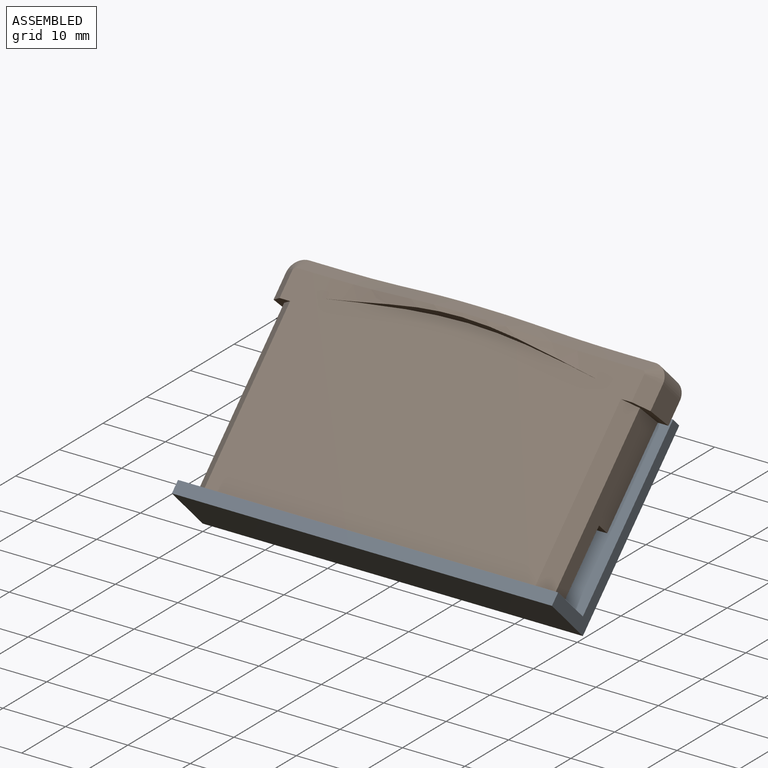
[diagram: assembled view]
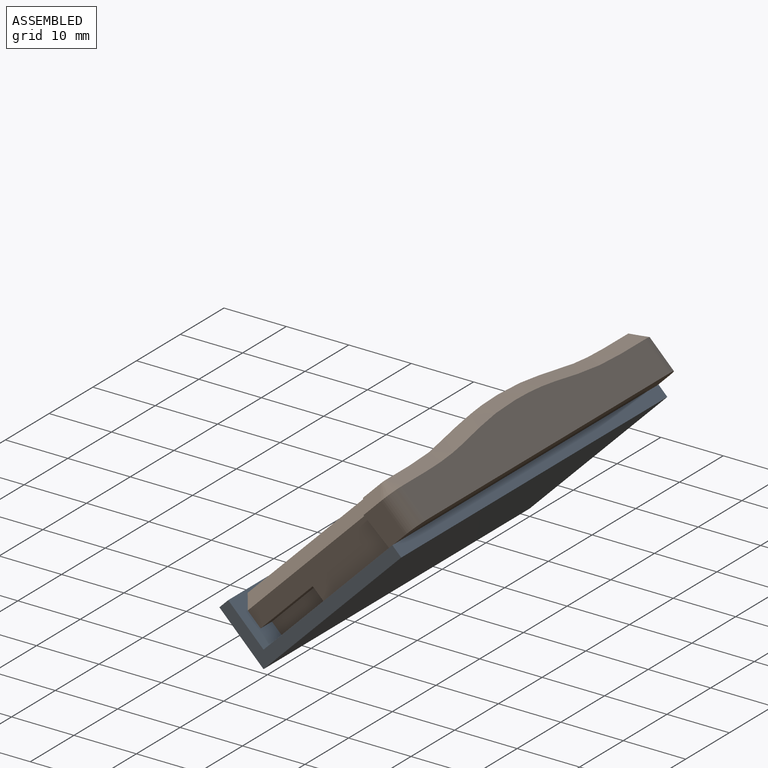
[diagram: assembled view, second angle]
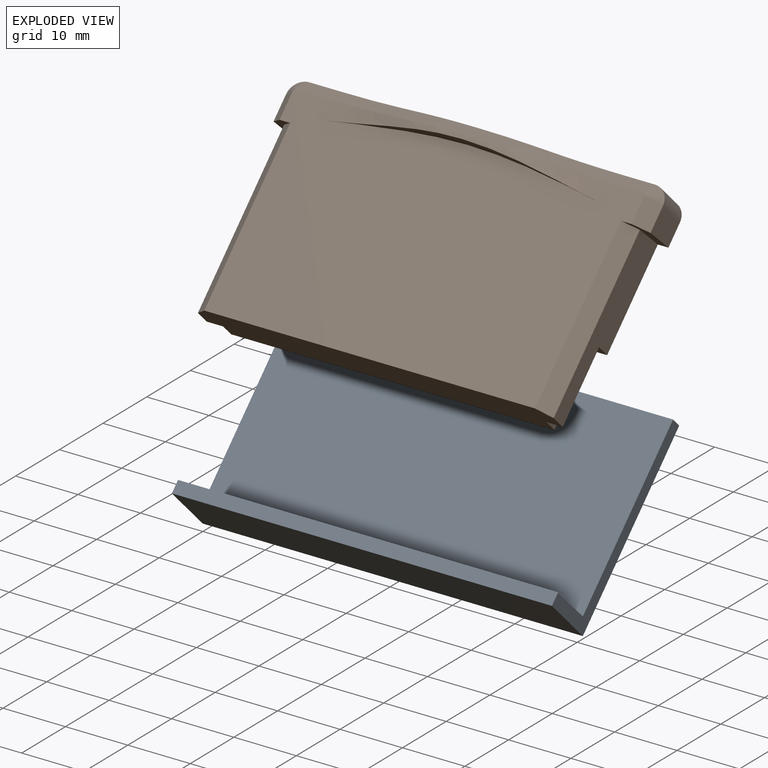
[diagram: exploded view]
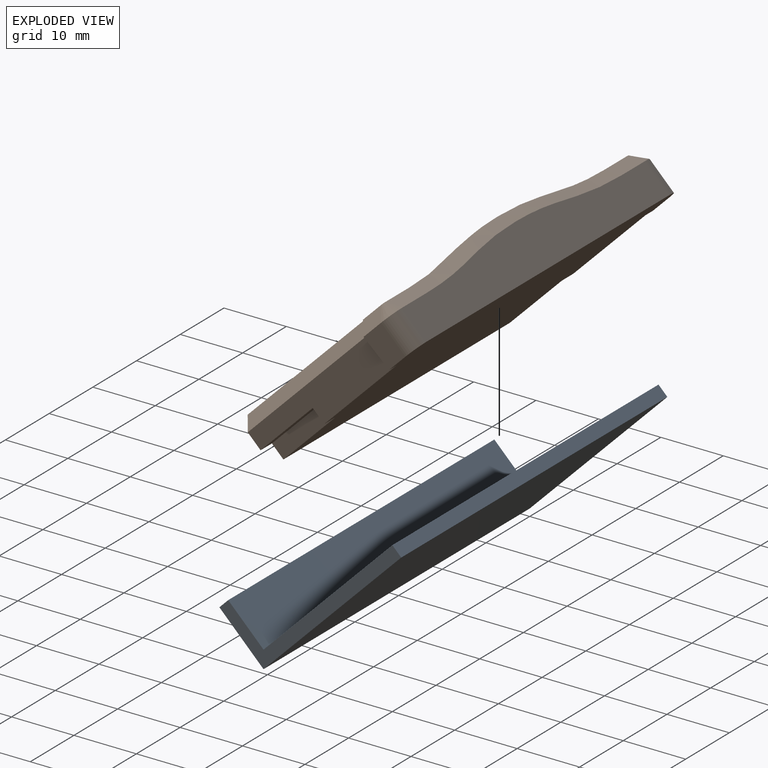
[diagram: exploded view, second angle]
ASSEMBLY  parts=2 mates=2
PART A: 8 faces, bbox 60.9x29.1x23.5 mm
  f0: plane 60.9x20.65mm, normal (0,-0.71,0.71), area 1778.3mm2, adj f1,f5,f6,f7
  f1: plane 60.9x5.66mm, normal (0,0.71,0.71), area 487.2mm2, adj f0,f2,f6,f7
  f2: plane 60.9x1.41mm, normal (0,-0.71,0.71), area 121.8mm2, adj f1,f3,f6,f7
  f3: plane 60.9x7.07mm, normal (0,-0.71,-0.71), area 609mm2, adj f2,f4,f6,f7
  f4: plane 60.9x22.06mm, normal (0,0.71,-0.71), area 1900.1mm2, adj f3,f5,f6,f7
  f5: plane 60.9x1.41mm, normal (0,0.71,0.71), area 121.8mm2, adj f0,f4,f6,f7
  f6: plane 29.13x23.48mm, normal (1,0,0), area 78.4mm2, adj f0,f1,f2,f3,f4,f5
  f7: plane 29.13x23.48mm, normal (-1,0,0), area 78.4mm2, adj f0,f1,f2,f3,f4,f5
PART B: 32 faces, bbox 60.9x10x34.9 mm
  f0: extruded ~22.25x2.4mm, area 22.3mm2, adj f2,f19,f21
  f1: plane 55.91x8.01mm, normal (0,0,1), area 349.1mm2, adj f8,f17,f18,f26,f27,f28,f29
  f2: plane 56.4x32.4mm, normal (0,-1,0), area 1665.6mm2, adj f0,f3,f9,f10,f19,f20,f21,f22
  f3: plane 57x7.5mm, normal (0,0,-1), area 410mm2, adj f2,f4,f5,f8,f11,f12,f14,f15
  f4: plane 28.2x5.5mm, normal (-1,0,0), area 123.6mm2, adj f3,f8,f9,f14,f16,f23
  f5: plane 28.2x5.5mm, normal (1,0,0), area 123.6mm2, adj f3,f8,f10,f12,f13,f22
  f6: plane 5.5x3.99mm, normal (-1,0,0), area 21.2mm2, adj f8,f9,f18,f24
  f7: plane 5.5x3.99mm, normal (1,0,0), area 21.2mm2, adj f8,f10,f17,f31
  f8: plane 60.4x34.4mm, normal (0,1,0), area 1917.8mm2, adj f1,f3,f4,f5,f6,f7,f9,f10
  f9: plane 7.5x3.7mm, normal (0,0.05,-1), area 12.8mm2, adj f2,f4,f6,f8,f23,f24
  f10: plane 7.5x3.7mm, normal (0,0.05,-1), area 12.8mm2, adj f2,f5,f7,f8,f22,f31
  f11: plane 11.8x2.6mm, normal (1,0,0), area 30.7mm2, adj f3,f8,f12,f13
  f12: plane 11.8x2.6mm, normal (0,1,0), area 30.7mm2, adj f3,f5,f11,f13
  f13: plane 2.6x2.6mm, normal (0,0,-1), area 6.8mm2, adj f5,f8,f11,f12
  f14: plane 11.8x2.6mm, normal (0,1,0), area 30.7mm2, adj f3,f4,f15,f16
  f15: plane 11.8x2.6mm, normal (-1,0,0), area 30.7mm2, adj f3,f8,f14,f16
  f16: plane 2.6x2.6mm, normal (0,0,-1), area 6.8mm2, adj f4,f8,f14,f15
  f17: cylinder r=2.5mm len=5.5mm, axis (0,-1,0), area 21.6mm2, adj f1,f7,f8,f30
  f18: cylinder r=2.5mm len=5.5mm, axis (0,1,0), area 21.6mm2, adj f1,f6,f8,f25
  f19: extruded ~22.25x2.4mm, area 22.3mm2, adj f0,f2,f20
  f20: extruded ~22.25x3mm, area 33.7mm2, adj f2,f19,f21,f28
  f21: extruded ~22.25x3mm, area 33.7mm2, adj f0,f2,f20,f27
  f22: plane 27.91x2mm, normal (0.71,-0.71,0), area 78.8mm2, adj f2,f3,f5,f10
  f23: plane 27.91x2mm, normal (-0.71,-0.71,0), area 78.8mm2, adj f2,f3,f4,f9
  f24: plane 4.1x2mm, normal (-0.71,-0.71,0), area 11.4mm2, adj f2,f6,f9,f25
  f25: cone r=0.5mm half-angle=45deg, axis (0,1,0), area 6.7mm2, adj f2,f18,f24,f26
  f26: plane 5.45x2mm, normal (0,-0.71,0.71), area 15.4mm2, adj f1,f2,f25,f27
  f27: bspline ~22.25x4mm, area 63.3mm2, adj f1,f21,f26,f28
  f28: bspline ~22.25x4mm, area 63.3mm2, adj f1,f20,f27,f29
  f29: plane 5.45x2mm, normal (0,-0.71,0.71), area 15.4mm2, adj f1,f2,f28,f30
  f30: cone r=0.5mm half-angle=45deg, axis (0,1,0), area 6.7mm2, adj f2,f17,f29,f31
  f31: plane 4.1x2mm, normal (0.71,-0.71,0), area 11.4mm2, adj f2,f7,f10,f30
PLACE A at identity fixed
PLACE B rot(axis=(-1,0,0),45deg) t=(30.45,12.16,12.16)mm
MATE planar B.f8 <-> A.f0  axis (0,0.71,-0.71) through (30.45,12.51,12.51)mm
MATE planar A.f1 <-> B.f3  axis (0,0.71,0.71) through (30.45,-2.83,2.83)mm
